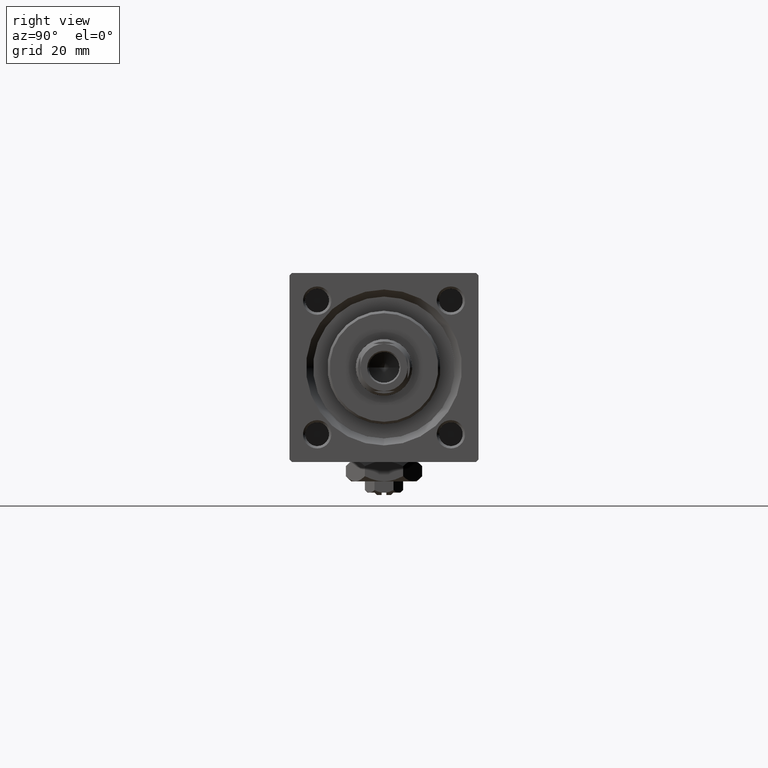
[diagram: clean part render]
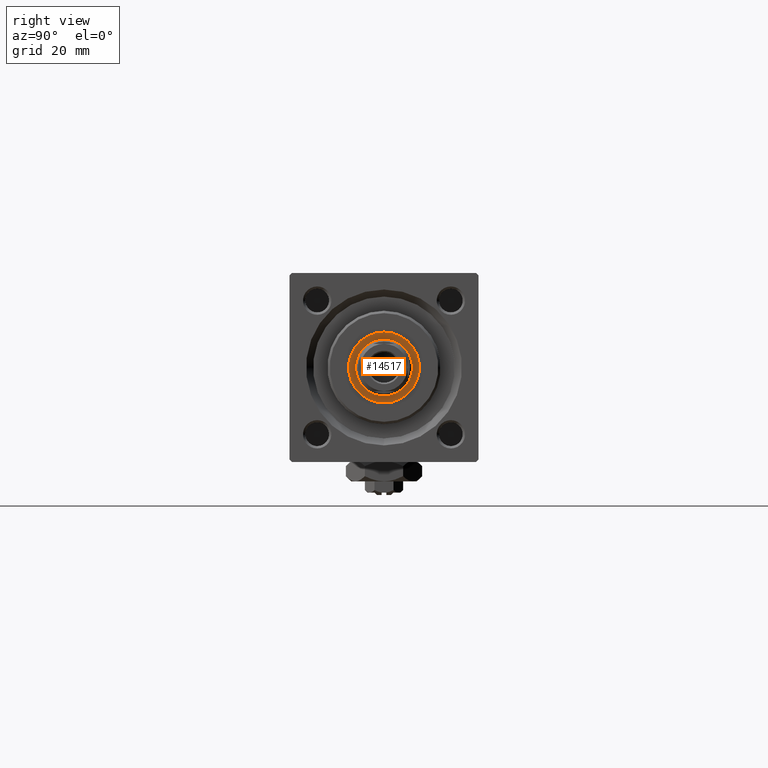
[diagram: same view with one face highlighted and labeled with its STEP entity id]
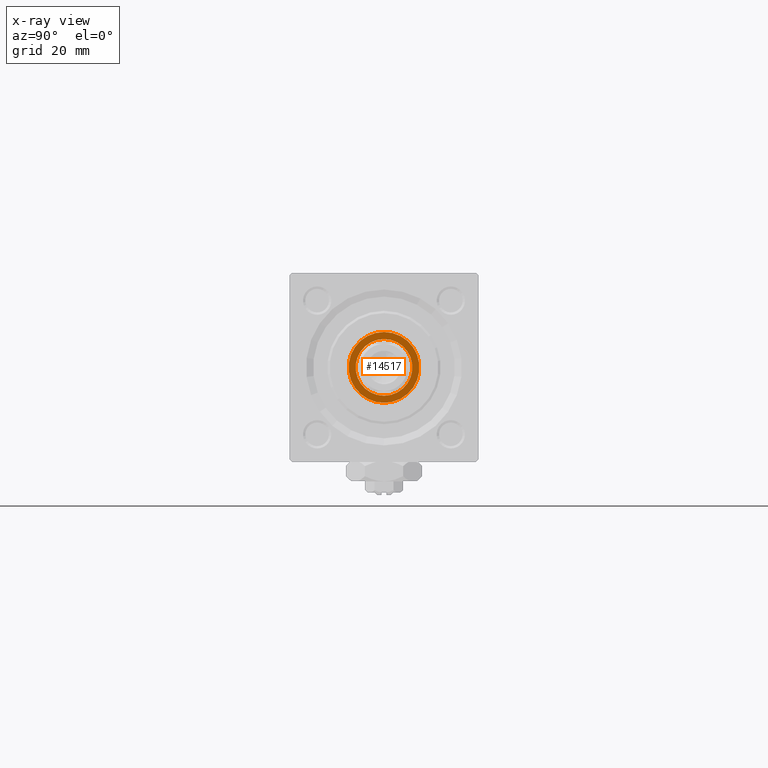
[diagram: x-ray of the same camera — body ghosted, the highlighted face saturated]
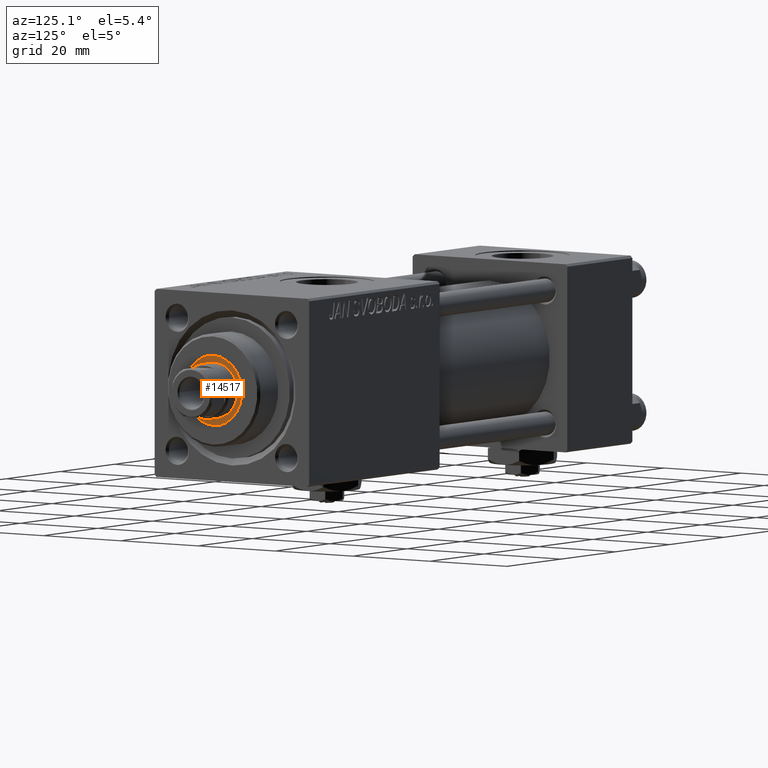
[diagram: same view with one face highlighted and labeled with its STEP entity id]
A machine part, right view. The second image highlights one B-rep face of the part: STEP entity #14517.
The next image is the same camera in x-ray: the body ghosted, the highlighted face saturated — about 0% of this face is hidden behind the body in this view.
A second angle (auxiliary view) of the same face is appended — the face is thin or edge-on in the first view.
In plain terms, the highlighted planar face has unit normal (1, 0, 0).
Its self-contained STEP definition (entity closure, byte-faithful):
#3232 = ORIENTED_EDGE ( 'NONE', *, *, #24197, .T. ) ;
#5065 = AXIS2_PLACEMENT_3D ( 'NONE', #45059, #21606, #45584 ) ;
#5365 = CIRCLE ( 'NONE', #23054, 6.000000000000000888 ) ;
#8318 = DIRECTION ( 'NONE',  ( 1.000000000000000000, 0.000000000000000000, 0.000000000000000000 ) ) ;
#10065 = CIRCLE ( 'NONE', #23554, 7.500000000000000888 ) ;
#11220 = EDGE_CURVE ( 'NONE', #33336, #52109, #10065, .T. ) ;
#11324 = CARTESIAN_POINT ( 'NONE',  ( -6.000000000000000888, 7.347880794884119736E-16, 35.20000000000000284 ) ) ;
#14517 = ADVANCED_FACE ( 'NONE', ( #28712, #25545 ), #21344, .T. ) ;
#14801 = DIRECTION ( 'NONE',  ( 1.000000000000000000, 0.000000000000000000, 0.000000000000000000 ) ) ;
#16631 = DIRECTION ( 'NONE',  ( 1.000000000000000000, 0.000000000000000000, 0.000000000000000000 ) ) ;
#17113 = EDGE_LOOP ( 'NONE', ( #33532, #3232 ) ) ;
#17552 = EDGE_CURVE ( 'NONE', #38585, #32967, #18664, .T. ) ;
#18664 = CIRCLE ( 'NONE', #48110, 6.000000000000000888 ) ;
#21344 = PLANE ( 'NONE',  #5065 ) ;
#21606 = DIRECTION ( 'NONE',  ( 0.000000000000000000, 0.000000000000000000, 1.000000000000000000 ) ) ;
#22819 = EDGE_LOOP ( 'NONE', ( #45140, #35934 ) ) ;
#23054 = AXIS2_PLACEMENT_3D ( 'NONE', #51433, #23768, #14801 ) ;
#23554 = AXIS2_PLACEMENT_3D ( 'NONE', #44448, #36010, #8318 ) ;
#23768 = DIRECTION ( 'NONE',  ( -0.000000000000000000, -0.000000000000000000, -1.000000000000000000 ) ) ;
#24197 = EDGE_CURVE ( 'NONE', #32967, #38585, #5365, .T. ) ;
#24438 = CARTESIAN_POINT ( 'NONE',  ( 7.500000000000000888, 0.000000000000000000, 35.20000000000000284 ) ) ;
#24857 = EDGE_CURVE ( 'NONE', #52109, #33336, #39083, .T. ) ;
#25250 = DIRECTION ( 'NONE',  ( 0.000000000000000000, 0.000000000000000000, 1.000000000000000000 ) ) ;
#25545 = FACE_BOUND ( 'NONE', #17113, .T. ) ;
#28712 = FACE_OUTER_BOUND ( 'NONE', #22819, .T. ) ;
#29203 = CARTESIAN_POINT ( 'NONE',  ( 0.000000000000000000, 0.000000000000000000, 35.20000000000000284 ) ) ;
#32967 = VERTEX_POINT ( 'NONE', #11324 ) ;
#33336 = VERTEX_POINT ( 'NONE', #24438 ) ;
#33532 = ORIENTED_EDGE ( 'NONE', *, *, #17552, .T. ) ;
#35934 = ORIENTED_EDGE ( 'NONE', *, *, #24857, .T. ) ;
#36010 = DIRECTION ( 'NONE',  ( 0.000000000000000000, 0.000000000000000000, 1.000000000000000000 ) ) ;
#36390 = CARTESIAN_POINT ( 'NONE',  ( 0.000000000000000000, 0.000000000000000000, 35.20000000000000284 ) ) ;
#38585 = VERTEX_POINT ( 'NONE', #47337 ) ;
#39083 = CIRCLE ( 'NONE', #47472, 7.500000000000000888 ) ;
#40874 = DIRECTION ( 'NONE',  ( -0.000000000000000000, -0.000000000000000000, -1.000000000000000000 ) ) ;
#41329 = DIRECTION ( 'NONE',  ( 1.000000000000000000, 0.000000000000000000, 0.000000000000000000 ) ) ;
#43012 = CARTESIAN_POINT ( 'NONE',  ( -7.500000000000000888, 9.184850993605149917E-16, 35.20000000000000284 ) ) ;
#44448 = CARTESIAN_POINT ( 'NONE',  ( 0.000000000000000000, 0.000000000000000000, 35.20000000000000284 ) ) ;
#45059 = CARTESIAN_POINT ( 'NONE',  ( 0.000000000000000000, 0.000000000000000000, 35.20000000000000284 ) ) ;
#45140 = ORIENTED_EDGE ( 'NONE', *, *, #11220, .T. ) ;
#45584 = DIRECTION ( 'NONE',  ( 1.000000000000000000, 0.000000000000000000, -0.000000000000000000 ) ) ;
#47337 = CARTESIAN_POINT ( 'NONE',  ( 6.000000000000000888, 0.000000000000000000, 35.20000000000000284 ) ) ;
#47472 = AXIS2_PLACEMENT_3D ( 'NONE', #29203, #25250, #41329 ) ;
#48110 = AXIS2_PLACEMENT_3D ( 'NONE', #36390, #40874, #16631 ) ;
#51433 = CARTESIAN_POINT ( 'NONE',  ( 0.000000000000000000, 0.000000000000000000, 35.20000000000000284 ) ) ;
#52109 = VERTEX_POINT ( 'NONE', #43012 ) ;